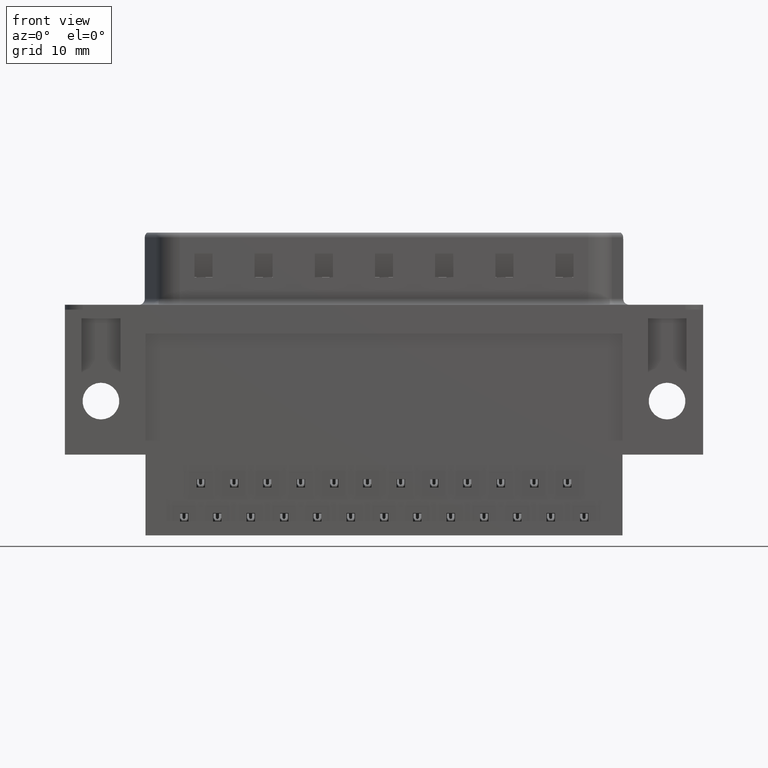
[diagram: clean part render]
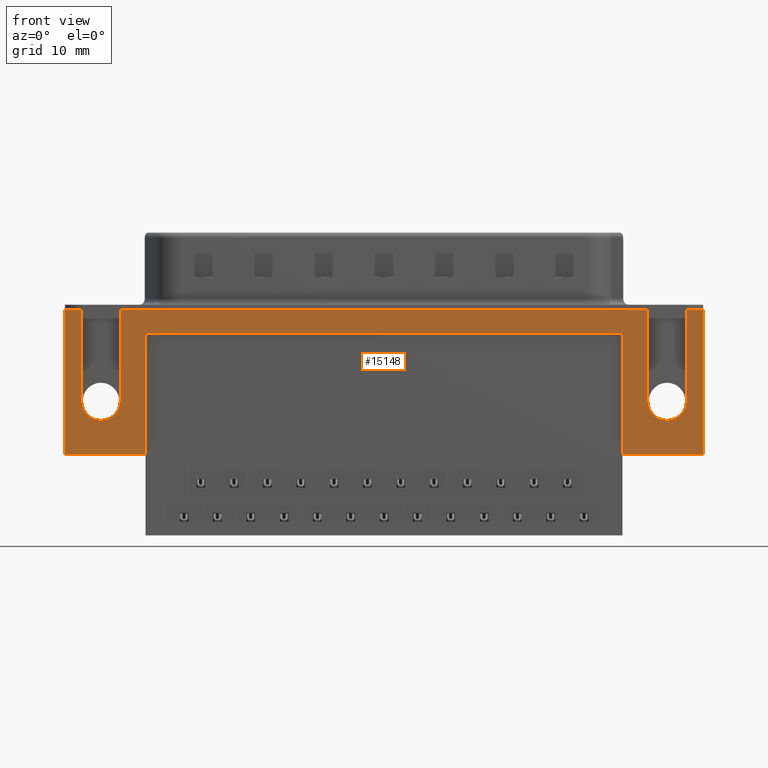
[diagram: same view with one face highlighted and labeled with its STEP entity id]
A machine part, front view. The second image highlights one B-rep face of the part: STEP entity #15148.
In plain terms, the highlighted planar face has unit normal (0, -1, 0).
Its self-contained STEP definition (entity closure, byte-faithful):
#335 = VERTEX_POINT ( 'NONE', #8118 ) ;
#344 = ORIENTED_EDGE ( 'NONE', *, *, #2430, .F. ) ;
#371 = CARTESIAN_POINT ( 'NONE',  ( 47.03999999999999900, -6.275000000000000400, -7.599999999999999600 ) ) ;
#416 = LINE ( 'NONE', #14940, #18364 ) ;
#715 = VECTOR ( 'NONE', #12032, 1000.000000000000000 ) ;
#740 = LINE ( 'NONE', #11081, #18652 ) ;
#839 = CARTESIAN_POINT ( 'NONE',  ( 45.44000000000000500, -6.275000000000000400, -7.599999999999999600 ) ) ;
#1157 = CARTESIAN_POINT ( 'NONE',  ( -3.000000000000002700, -6.275000000000000400, 0.0000000000000000000 ) ) ;
#1392 = VERTEX_POINT ( 'NONE', #8213 ) ;
#1457 = VERTEX_POINT ( 'NONE', #21608 ) ;
#1490 = AXIS2_PLACEMENT_3D ( 'NONE', #9718, #21648, #11424 ) ;
#1515 = EDGE_CURVE ( 'NONE', #17939, #1745, #14996, .T. ) ;
#1549 = VECTOR ( 'NONE', #18224, 1000.000000000000000 ) ;
#1745 = VERTEX_POINT ( 'NONE', #2422 ) ;
#1852 = DIRECTION ( 'NONE',  ( 1.000000000000000000, 0.0000000000000000000, 0.0000000000000000000 ) ) ;
#1867 = EDGE_CURVE ( 'NONE', #21724, #335, #4826, .T. ) ;
#2100 = VECTOR ( 'NONE', #12440, 1000.000000000000000 ) ;
#2138 = EDGE_CURVE ( 'NONE', #11032, #6124, #740, .T. ) ;
#2239 = EDGE_CURVE ( 'NONE', #11032, #1457, #7336, .T. ) ;
#2271 = EDGE_CURVE ( 'NONE', #13983, #6124, #6218, .T. ) ;
#2301 = EDGE_CURVE ( 'NONE', #18086, #13983, #14951, .T. ) ;
#2365 = EDGE_CURVE ( 'NONE', #18776, #13152, #4573, .T. ) ;
#2398 = EDGE_CURVE ( 'NONE', #3756, #18776, #17346, .T. ) ;
#2422 = CARTESIAN_POINT ( 'NONE',  ( -3.000000000000002700, -6.275000000000000400, 0.0000000000000000000 ) ) ;
#2430 = EDGE_CURVE ( 'NONE', #11805, #3756, #12789, .T. ) ;
#2470 = EDGE_CURVE ( 'NONE', #1392, #11805, #7046, .T. ) ;
#2474 = CARTESIAN_POINT ( 'NONE',  ( -1.600000000000000100, -6.275000000000000400, -7.599999999999999600 ) ) ;
#2527 = EDGE_CURVE ( 'NONE', #18838, #21724, #14676, .T. ) ;
#2531 = PLANE ( 'NONE',  #1490 ) ;
#2555 = EDGE_CURVE ( 'NONE', #1745, #18838, #18631, .T. ) ;
#2655 = EDGE_CURVE ( 'NONE', #5080, #17939, #7852, .T. ) ;
#2680 = EDGE_CURVE ( 'NONE', #19357, #5080, #7317, .T. ) ;
#2707 = EDGE_CURVE ( 'NONE', #17311, #19357, #15470, .T. ) ;
#2750 = EDGE_CURVE ( 'NONE', #1457, #17311, #416, .T. ) ;
#3185 = VECTOR ( 'NONE', #9963, 1000.000000000000000 ) ;
#3480 = CARTESIAN_POINT ( 'NONE',  ( 45.44000000000000500, -6.275000000000000400, 0.0000000000000000000 ) ) ;
#3756 = VERTEX_POINT ( 'NONE', #3480 ) ;
#4186 = DIRECTION ( 'NONE',  ( 0.0000000000000000000, -1.000000000000000000, 0.0000000000000000000 ) ) ;
#4519 = CIRCLE ( 'NONE', #20354, 1.599999999999989400 ) ;
#4573 = CIRCLE ( 'NONE', #15193, 1.599999999999989400 ) ;
#4826 = CIRCLE ( 'NONE', #16640, 1.600000000000000800 ) ;
#4904 = ORIENTED_EDGE ( 'NONE', *, *, #2398, .F. ) ;
#5080 = VERTEX_POINT ( 'NONE', #20862 ) ;
#5571 = DIRECTION ( 'NONE',  ( 0.0000000000000000000, -1.000000000000000000, 0.0000000000000000000 ) ) ;
#5617 = DIRECTION ( 'NONE',  ( -1.000000000000000000, 0.0000000000000000000, 0.0000000000000000000 ) ) ;
#5631 = CARTESIAN_POINT ( 'NONE',  ( 3.699999999999997500, -6.275000000000001200, -2.000000000000000000 ) ) ;
#6124 = VERTEX_POINT ( 'NONE', #15942 ) ;
#6196 = FACE_OUTER_BOUND ( 'NONE', #17382, .T. ) ;
#6218 = LINE ( 'NONE', #18299, #1549 ) ;
#6268 = VECTOR ( 'NONE', #8423, 1000.000000000000000 ) ;
#6818 = ORIENTED_EDGE ( 'NONE', *, *, #2470, .F. ) ;
#7046 = LINE ( 'NONE', #13906, #21305 ) ;
#7059 = ORIENTED_EDGE ( 'NONE', *, *, #2655, .F. ) ;
#7317 = LINE ( 'NONE', #22183, #2100 ) ;
#7336 = LINE ( 'NONE', #12395, #3185 ) ;
#7852 = LINE ( 'NONE', #13654, #16546 ) ;
#7927 = CARTESIAN_POINT ( 'NONE',  ( -3.000000000000003100, -6.275000000000000400, -12.05000000000000100 ) ) ;
#8118 = CARTESIAN_POINT ( 'NONE',  ( -6.672310656933202700E-015, -6.275000000000000400, -9.199999999999999300 ) ) ;
#8143 = VECTOR ( 'NONE', #17224, 1000.000000000000000 ) ;
#8208 = ORIENTED_EDGE ( 'NONE', *, *, #2365, .F. ) ;
#8213 = CARTESIAN_POINT ( 'NONE',  ( 1.600000000000000100, -6.275000000000000400, -7.599999999999999600 ) ) ;
#8423 = DIRECTION ( 'NONE',  ( 0.0000000000000000000, 0.0000000000000000000, 1.000000000000000000 ) ) ;
#8859 = ORIENTED_EDGE ( 'NONE', *, *, #1867, .F. ) ;
#8905 = DIRECTION ( 'NONE',  ( 0.0000000000000000000, 0.0000000000000000000, 1.000000000000000000 ) ) ;
#9113 = CARTESIAN_POINT ( 'NONE',  ( 48.63999999999998600, -6.275000000000000400, -9.797174393178765800E-017 ) ) ;
#9683 = CARTESIAN_POINT ( 'NONE',  ( -3.000000000000002700, -6.275000000000000400, -2.500000000000000000 ) ) ;
#9718 = CARTESIAN_POINT ( 'NONE',  ( -3.000000000000002700, -6.275000000000000400, -2.500000000000000000 ) ) ;
#9722 = AXIS2_PLACEMENT_3D ( 'NONE', #15990, #5571, #17701 ) ;
#9764 = CARTESIAN_POINT ( 'NONE',  ( 47.03999999999999900, -6.275000000000000400, -7.599999999999999600 ) ) ;
#9963 = DIRECTION ( 'NONE',  ( -1.000000000000000000, 0.0000000000000000000, 0.0000000000000000000 ) ) ;
#10382 = VECTOR ( 'NONE', #20388, 1000.000000000000000 ) ;
#10420 = ORIENTED_EDGE ( 'NONE', *, *, #2707, .F. ) ;
#10888 = VECTOR ( 'NONE', #21380, 1000.000000000000000 ) ;
#11032 = VERTEX_POINT ( 'NONE', #13642 ) ;
#11081 = CARTESIAN_POINT ( 'NONE',  ( 50.03999999999999900, -6.275000000000000400, -2.500000000000000000 ) ) ;
#11306 = ORIENTED_EDGE ( 'NONE', *, *, #2527, .F. ) ;
#11424 = DIRECTION ( 'NONE',  ( 0.0000000000000000000, -0.0000000000000000000, -1.000000000000000000 ) ) ;
#11481 = DIRECTION ( 'NONE',  ( 0.0000000000000000000, 0.0000000000000000000, -1.000000000000000000 ) ) ;
#11678 = CIRCLE ( 'NONE', #9722, 1.600000000000000800 ) ;
#11805 = VERTEX_POINT ( 'NONE', #20286 ) ;
#11913 = CARTESIAN_POINT ( 'NONE',  ( 43.34000000000000300, -6.275000000000009200, -2.000000000000000000 ) ) ;
#12032 = DIRECTION ( 'NONE',  ( -2.853163611803959400E-017, -0.0000000000000000000, -1.000000000000000000 ) ) ;
#12049 = ORIENTED_EDGE ( 'NONE', *, *, #2271, .F. ) ;
#12395 = CARTESIAN_POINT ( 'NONE',  ( -3.000000000000002700, -6.275000000000000400, -12.05000000000000100 ) ) ;
#12440 = DIRECTION ( 'NONE',  ( 3.105113620483545400E-016, 0.0000000000000000000, -1.000000000000000000 ) ) ;
#12789 = LINE ( 'NONE', #15735, #16276 ) ;
#13119 = ORIENTED_EDGE ( 'NONE', *, *, #2301, .F. ) ;
#13152 = VERTEX_POINT ( 'NONE', #20817 ) ;
#13345 = ORIENTED_EDGE ( 'NONE', *, *, #2555, .F. ) ;
#13642 = CARTESIAN_POINT ( 'NONE',  ( 50.03999999999999900, -6.275000000000000400, -12.05000000000000100 ) ) ;
#13654 = CARTESIAN_POINT ( 'NONE',  ( -3.000000000000002700, -6.275000000000000400, -12.05000000000000100 ) ) ;
#13906 = CARTESIAN_POINT ( 'NONE',  ( 1.600000000000000100, -6.275000000000000400, -7.599999999999999600 ) ) ;
#13913 = DIRECTION ( 'NONE',  ( -2.853163611803959400E-017, 0.0000000000000000000, 1.000000000000000000 ) ) ;
#13983 = VERTEX_POINT ( 'NONE', #9113 ) ;
#14650 = CARTESIAN_POINT ( 'NONE',  ( -6.672310656933202700E-015, -6.275000000000000400, -7.599999999999998800 ) ) ;
#14676 = LINE ( 'NONE', #2474, #715 ) ;
#14940 = CARTESIAN_POINT ( 'NONE',  ( 43.34000000000000300, -6.275000000000009200, -2.000000000000000000 ) ) ;
#14951 = LINE ( 'NONE', #21969, #10382 ) ;
#14996 = LINE ( 'NONE', #9683, #6268 ) ;
#15148 = ADVANCED_FACE ( 'NONE', ( #6196 ), #2531, .T. ) ;
#15193 = AXIS2_PLACEMENT_3D ( 'NONE', #371, #22372, #22307 ) ;
#15283 = DIRECTION ( 'NONE',  ( 1.000000000000000000, 0.0000000000000000000, 0.0000000000000000000 ) ) ;
#15470 = LINE ( 'NONE', #5631, #10888 ) ;
#15735 = CARTESIAN_POINT ( 'NONE',  ( -3.000000000000002700, -6.275000000000000400, 0.0000000000000000000 ) ) ;
#15942 = CARTESIAN_POINT ( 'NONE',  ( 50.03999999999999900, -6.275000000000000400, 0.0000000000000000000 ) ) ;
#15984 = EDGE_CURVE ( 'NONE', #13152, #18086, #4519, .T. ) ;
#15990 = CARTESIAN_POINT ( 'NONE',  ( -6.672310656933202700E-015, -6.275000000000000400, -7.599999999999998800 ) ) ;
#16220 = CARTESIAN_POINT ( 'NONE',  ( -1.600000000000000100, -6.275000000000000400, -7.599999999999999600 ) ) ;
#16241 = ORIENTED_EDGE ( 'NONE', *, *, #22293, .F. ) ;
#16259 = DIRECTION ( 'NONE',  ( -0.0000000000000000000, -0.0000000000000000000, 1.000000000000000000 ) ) ;
#16276 = VECTOR ( 'NONE', #15283, 1000.000000000000000 ) ;
#16364 = DIRECTION ( 'NONE',  ( 0.0000000000000000000, 0.0000000000000000000, -1.000000000000000000 ) ) ;
#16546 = VECTOR ( 'NONE', #5617, 1000.000000000000000 ) ;
#16640 = AXIS2_PLACEMENT_3D ( 'NONE', #14650, #4186, #16364 ) ;
#16709 = ORIENTED_EDGE ( 'NONE', *, *, #2680, .F. ) ;
#17160 = ORIENTED_EDGE ( 'NONE', *, *, #2750, .F. ) ;
#17224 = DIRECTION ( 'NONE',  ( -0.0000000000000000000, -0.0000000000000000000, -1.000000000000000000 ) ) ;
#17311 = VERTEX_POINT ( 'NONE', #11913 ) ;
#17346 = LINE ( 'NONE', #20065, #8143 ) ;
#17382 = EDGE_LOOP ( 'NONE', ( #19124, #18922, #12049, #13119, #20323, #8208, #4904, #344, #6818, #16241, #8859, #11306, #13345, #20977, #7059, #16709, #10420, #17160 ) ) ;
#17701 = DIRECTION ( 'NONE',  ( 0.0000000000000000000, 0.0000000000000000000, -1.000000000000000000 ) ) ;
#17939 = VERTEX_POINT ( 'NONE', #7927 ) ;
#18086 = VERTEX_POINT ( 'NONE', #21737 ) ;
#18105 = VECTOR ( 'NONE', #1852, 1000.000000000000000 ) ;
#18224 = DIRECTION ( 'NONE',  ( 1.000000000000000000, 0.0000000000000000000, 0.0000000000000000000 ) ) ;
#18299 = CARTESIAN_POINT ( 'NONE',  ( -3.000000000000002700, -6.275000000000000400, 0.0000000000000000000 ) ) ;
#18364 = VECTOR ( 'NONE', #16259, 1000.000000000000000 ) ;
#18631 = LINE ( 'NONE', #1157, #18105 ) ;
#18652 = VECTOR ( 'NONE', #8905, 1000.000000000000000 ) ;
#18776 = VERTEX_POINT ( 'NONE', #839 ) ;
#18838 = VERTEX_POINT ( 'NONE', #20068 ) ;
#18922 = ORIENTED_EDGE ( 'NONE', *, *, #2138, .T. ) ;
#19124 = ORIENTED_EDGE ( 'NONE', *, *, #2239, .F. ) ;
#19357 = VERTEX_POINT ( 'NONE', #21626 ) ;
#20065 = CARTESIAN_POINT ( 'NONE',  ( 45.44000000000000500, -6.275000000000000400, -7.599999999999999600 ) ) ;
#20068 = CARTESIAN_POINT ( 'NONE',  ( -1.599999999999999900, -6.275000000000000400, 0.0000000000000000000 ) ) ;
#20286 = CARTESIAN_POINT ( 'NONE',  ( 1.599999999999999900, -6.275000000000000400, -9.797174393178824900E-017 ) ) ;
#20323 = ORIENTED_EDGE ( 'NONE', *, *, #15984, .F. ) ;
#20354 = AXIS2_PLACEMENT_3D ( 'NONE', #9764, #21691, #11481 ) ;
#20388 = DIRECTION ( 'NONE',  ( 0.0000000000000000000, 0.0000000000000000000, 1.000000000000000000 ) ) ;
#20817 = CARTESIAN_POINT ( 'NONE',  ( 47.03999999999999900, -6.275000000000000400, -9.199999999999988600 ) ) ;
#20862 = CARTESIAN_POINT ( 'NONE',  ( 3.699999999999995700, -6.275000000000001200, -12.05000000000000100 ) ) ;
#20977 = ORIENTED_EDGE ( 'NONE', *, *, #1515, .F. ) ;
#21305 = VECTOR ( 'NONE', #13913, 1000.000000000000000 ) ;
#21380 = DIRECTION ( 'NONE',  ( -1.000000000000000000, 1.969287497955507300E-016, -0.0000000000000000000 ) ) ;
#21608 = CARTESIAN_POINT ( 'NONE',  ( 43.34000000000001800, -6.275000000000009200, -12.05000000000000100 ) ) ;
#21626 = CARTESIAN_POINT ( 'NONE',  ( 3.699999999999997500, -6.275000000000001200, -2.000000000000000000 ) ) ;
#21648 = DIRECTION ( 'NONE',  ( 0.0000000000000000000, -1.000000000000000000, 0.0000000000000000000 ) ) ;
#21691 = DIRECTION ( 'NONE',  ( 0.0000000000000000000, -1.000000000000000000, 0.0000000000000000000 ) ) ;
#21724 = VERTEX_POINT ( 'NONE', #16220 ) ;
#21737 = CARTESIAN_POINT ( 'NONE',  ( 48.63999999999998600, -6.275000000000000400, -7.599999999999999600 ) ) ;
#21969 = CARTESIAN_POINT ( 'NONE',  ( 48.63999999999998600, -6.275000000000000400, -7.599999999999999600 ) ) ;
#22183 = CARTESIAN_POINT ( 'NONE',  ( 3.699999999999997500, -6.275000000000001200, -2.000000000000000000 ) ) ;
#22293 = EDGE_CURVE ( 'NONE', #335, #1392, #11678, .T. ) ;
#22307 = DIRECTION ( 'NONE',  ( 0.0000000000000000000, 0.0000000000000000000, -1.000000000000000000 ) ) ;
#22372 = DIRECTION ( 'NONE',  ( 0.0000000000000000000, -1.000000000000000000, 0.0000000000000000000 ) ) ;